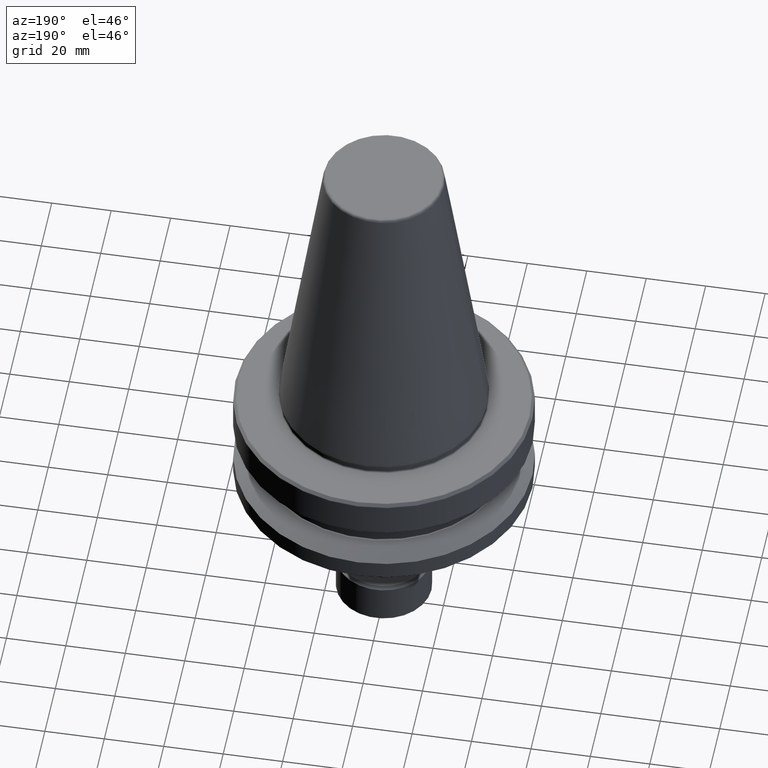
[diagram: clean part render]
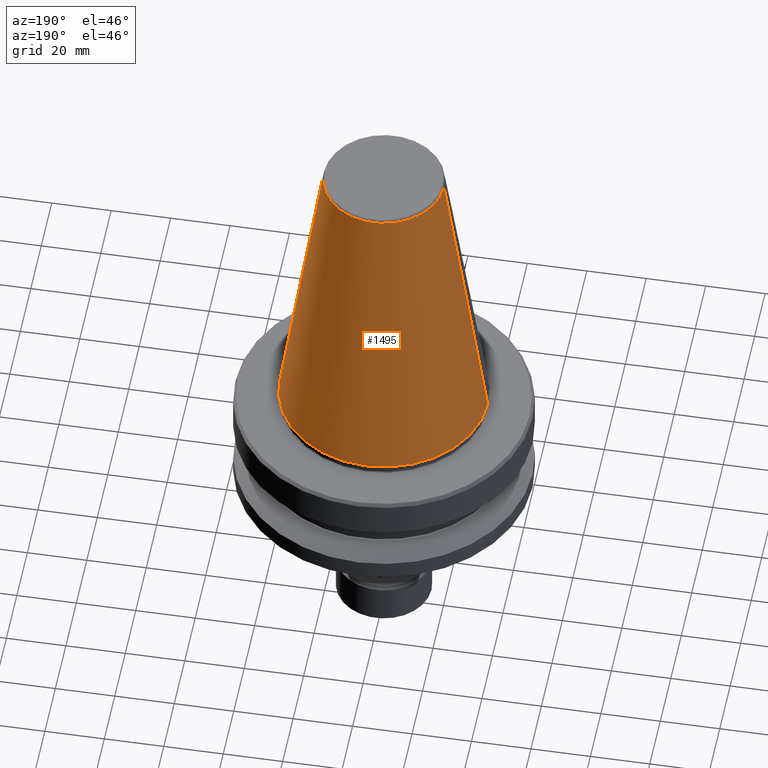
[diagram: same view with one face highlighted and labeled with its STEP entity id]
A machine part, auxiliary view. The second image highlights one B-rep face of the part: STEP entity #1495.
In plain terms, the highlighted conical surface has half-angle 8.297 deg.
Its self-contained STEP definition (entity closure, byte-faithful):
#70 = VERTEX_POINT ( 'NONE', #2162 ) ;
#148 = AXIS2_PLACEMENT_3D ( 'NONE', #2139, #1280, #942 ) ;
#151 = CARTESIAN_POINT ( 'NONE',  ( 0.0000000000000000000, 0.0000000000000000000, 0.0000000000000000000 ) ) ;
#156 = CARTESIAN_POINT ( 'NONE',  ( 0.0000000000000000000, 0.0000000000000000000, 100.9443082272673300 ) ) ;
#257 = EDGE_CURVE ( 'NONE', #497, #1542, #1971, .T. ) ;
#310 = DIRECTION ( 'NONE',  ( 1.000000000000000000, 0.0000000000000000000, 0.0000000000000000000 ) ) ;
#313 = DIRECTION ( 'NONE',  ( 1.000000000000000000, 0.0000000000000000000, 0.0000000000000000000 ) ) ;
#369 = EDGE_CURVE ( 'NONE', #70, #1542, #1792, .T. ) ;
#433 = ORIENTED_EDGE ( 'NONE', *, *, #369, .T. ) ;
#497 = VERTEX_POINT ( 'NONE', #518 ) ;
#503 = CIRCLE ( 'NONE', #1045, 20.20381605152171600 ) ;
#518 = CARTESIAN_POINT ( 'NONE',  ( -20.20381605152171600, 0.0000000000000000000, 100.9443082272673300 ) ) ;
#581 = EDGE_CURVE ( 'NONE', #1709, #70, #1408, .T. ) ;
#584 = DIRECTION ( 'NONE',  ( -0.1443082272673070800, 0.0000000000000000000, -0.9895327864921743500 ) ) ;
#601 = CARTESIAN_POINT ( 'NONE',  ( -20.20381605152171600, 0.0000000000000000000, 100.9443082272673300 ) ) ;
#669 = ORIENTED_EDGE ( 'NONE', *, *, #2024, .F. ) ;
#710 = AXIS2_PLACEMENT_3D ( 'NONE', #151, #779, #313 ) ;
#779 = DIRECTION ( 'NONE',  ( -0.0000000000000000000, -0.0000000000000000000, 1.000000000000000000 ) ) ;
#942 = DIRECTION ( 'NONE',  ( -1.000000000000000000, 0.0000000000000000000, 0.0000000000000000000 ) ) ;
#988 = CARTESIAN_POINT ( 'NONE',  ( -34.92500000000000400, 4.277078946022131700E-015, 0.0000000000000000000 ) ) ;
#1045 = AXIS2_PLACEMENT_3D ( 'NONE', #156, #1295, #310 ) ;
#1046 = ORIENTED_EDGE ( 'NONE', *, *, #257, .F. ) ;
#1264 = CARTESIAN_POINT ( 'NONE',  ( 20.20381605152171600, 2.474253865805798900E-015, 100.9443082272673300 ) ) ;
#1280 = DIRECTION ( 'NONE',  ( 0.0000000000000000000, 0.0000000000000000000, -1.000000000000000000 ) ) ;
#1295 = DIRECTION ( 'NONE',  ( -0.0000000000000000000, -0.0000000000000000000, 1.000000000000000000 ) ) ;
#1408 = LINE ( 'NONE', #1264, #1440 ) ;
#1440 = VECTOR ( 'NONE', #2124, 1000.000000000000000 ) ;
#1495 = ADVANCED_FACE ( 'NONE', ( #1657 ), #1547, .T. ) ;
#1542 = VERTEX_POINT ( 'NONE', #988 ) ;
#1547 = CONICAL_SURFACE ( 'NONE', #148, 20.20381605152171600, 0.1448138465474190800 ) ;
#1586 = EDGE_LOOP ( 'NONE', ( #669, #2030, #433, #1046 ) ) ;
#1657 = FACE_OUTER_BOUND ( 'NONE', #1586, .T. ) ;
#1709 = VERTEX_POINT ( 'NONE', #1876 ) ;
#1792 = CIRCLE ( 'NONE', #710, 34.92500000000000400 ) ;
#1876 = CARTESIAN_POINT ( 'NONE',  ( 20.20381605152171600, 3.375666405913964900E-015, 100.9443082272673300 ) ) ;
#1970 = VECTOR ( 'NONE', #584, 1000.000000000000000 ) ;
#1971 = LINE ( 'NONE', #601, #1970 ) ;
#2024 = EDGE_CURVE ( 'NONE', #1709, #497, #503, .T. ) ;
#2030 = ORIENTED_EDGE ( 'NONE', *, *, #581, .T. ) ;
#2124 = DIRECTION ( 'NONE',  ( 0.1443082272673070800, 1.767266086135364000E-017, -0.9895327864921743500 ) ) ;
#2139 = CARTESIAN_POINT ( 'NONE',  ( 0.0000000000000000000, 0.0000000000000000000, 100.9443082272673300 ) ) ;
#2162 = CARTESIAN_POINT ( 'NONE',  ( 34.92500000000000400, 0.0000000000000000000, 0.0000000000000000000 ) ) ;